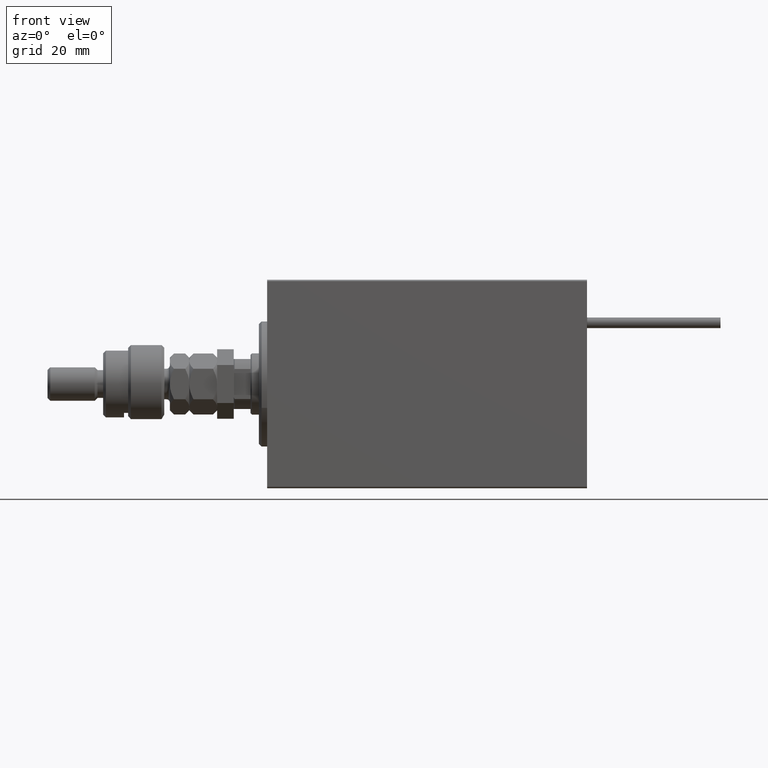
[diagram: clean part render]
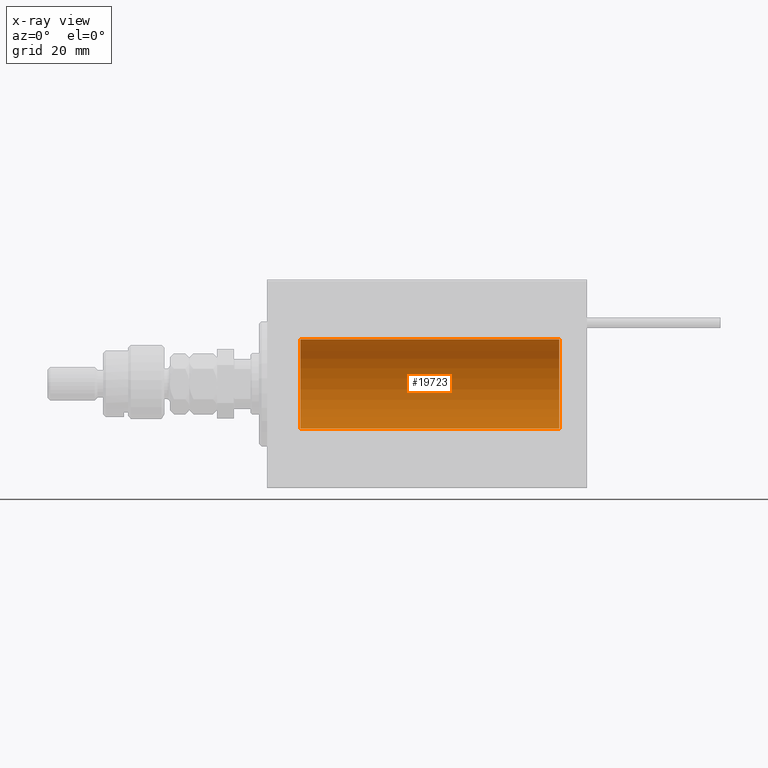
[diagram: x-ray — body ghosted, one internal face saturated and labeled with its STEP entity id]
A machine part, front view, then the same camera in x-ray: the body is ghosted and one INTERNAL B-rep face — a face not visible from any outside direction — is saturated and labeled: STEP entity #19723.
In plain terms, the highlighted cylindrical surface (partial cylindrical patch) has radius 16 mm, axis along (-1, -0, -0).
Its self-contained STEP definition (entity closure, byte-faithful):
#2977 = DIRECTION ( 'NONE',  ( -1.000000000000000000, -0.000000000000000000, -0.000000000000000000 ) ) ;
#4477 = DIRECTION ( 'NONE',  ( -1.000000000000000000, 0.000000000000000000, 0.000000000000000000 ) ) ;
#6177 = VERTEX_POINT ( 'NONE', #11389 ) ;
#6726 = DIRECTION ( 'NONE',  ( -1.000000000000000000, -0.000000000000000000, -0.000000000000000000 ) ) ;
#7499 = CARTESIAN_POINT ( 'NONE',  ( 105.0000000000000000, 1.959434878635765131E-15, -16.00000000000000000 ) ) ;
#7732 = ORIENTED_EDGE ( 'NONE', *, *, #9852, .T. ) ;
#7954 = CARTESIAN_POINT ( 'NONE',  ( 11.99999999999999645, 0.000000000000000000, 0.000000000000000000 ) ) ;
#9852 = EDGE_CURVE ( 'NONE', #28760, #37134, #13158, .T. ) ;
#11389 = CARTESIAN_POINT ( 'NONE',  ( 11.99999999999999645, 1.959434878635765131E-15, -16.00000000000000000 ) ) ;
#11785 = VECTOR ( 'NONE', #2977, 1000.000000000000000 ) ;
#12313 = DIRECTION ( 'NONE',  ( -1.000000000000000000, 0.000000000000000000, 0.000000000000000000 ) ) ;
#12859 = EDGE_CURVE ( 'NONE', #28760, #28520, #38518, .T. ) ;
#13158 = LINE ( 'NONE', #29412, #41824 ) ;
#13256 = CARTESIAN_POINT ( 'NONE',  ( 105.0000000000000000, 1.959434878635765131E-15, -16.00000000000000000 ) ) ;
#13905 = ORIENTED_EDGE ( 'NONE', *, *, #30435, .F. ) ;
#17456 = ORIENTED_EDGE ( 'NONE', *, *, #12859, .F. ) ;
#19723 = ADVANCED_FACE ( 'NONE', ( #44033 ), #35227, .F. ) ;
#26138 = CARTESIAN_POINT ( 'NONE',  ( 11.99999999999999645, 0.000000000000000000, 16.00000000000000000 ) ) ;
#26950 = EDGE_CURVE ( 'NONE', #37134, #6177, #33787, .T. ) ;
#28520 = VERTEX_POINT ( 'NONE', #13256 ) ;
#28760 = VERTEX_POINT ( 'NONE', #36111 ) ;
#29412 = CARTESIAN_POINT ( 'NONE',  ( 105.0000000000000000, 0.000000000000000000, 16.00000000000000000 ) ) ;
#29526 = AXIS2_PLACEMENT_3D ( 'NONE', #7954, #4477, #40463 ) ;
#30034 = AXIS2_PLACEMENT_3D ( 'NONE', #48845, #12313, #49358 ) ;
#30435 = EDGE_CURVE ( 'NONE', #28520, #6177, #44279, .T. ) ;
#31141 = AXIS2_PLACEMENT_3D ( 'NONE', #31240, #6726, #35493 ) ;
#31240 = CARTESIAN_POINT ( 'NONE',  ( 105.0000000000000000, 0.000000000000000000, 0.000000000000000000 ) ) ;
#33787 = CIRCLE ( 'NONE', #29526, 16.00000000000000000 ) ;
#35227 = CYLINDRICAL_SURFACE ( 'NONE', #31141, 16.00000000000000000 ) ;
#35493 = DIRECTION ( 'NONE',  ( 0.000000000000000000, 0.000000000000000000, 1.000000000000000000 ) ) ;
#36111 = CARTESIAN_POINT ( 'NONE',  ( 105.0000000000000000, 0.000000000000000000, 16.00000000000000000 ) ) ;
#37134 = VERTEX_POINT ( 'NONE', #26138 ) ;
#38518 = CIRCLE ( 'NONE', #30034, 16.00000000000000000 ) ;
#40463 = DIRECTION ( 'NONE',  ( 0.000000000000000000, 0.000000000000000000, 1.000000000000000000 ) ) ;
#41824 = VECTOR ( 'NONE', #42407, 1000.000000000000000 ) ;
#42407 = DIRECTION ( 'NONE',  ( -1.000000000000000000, -0.000000000000000000, -0.000000000000000000 ) ) ;
#44033 = FACE_OUTER_BOUND ( 'NONE', #51539, .T. ) ;
#44279 = LINE ( 'NONE', #7499, #11785 ) ;
#48845 = CARTESIAN_POINT ( 'NONE',  ( 105.0000000000000000, 0.000000000000000000, 0.000000000000000000 ) ) ;
#49358 = DIRECTION ( 'NONE',  ( 0.000000000000000000, 0.000000000000000000, 1.000000000000000000 ) ) ;
#51539 = EDGE_LOOP ( 'NONE', ( #13905, #17456, #7732, #52336 ) ) ;
#52336 = ORIENTED_EDGE ( 'NONE', *, *, #26950, .T. ) ;